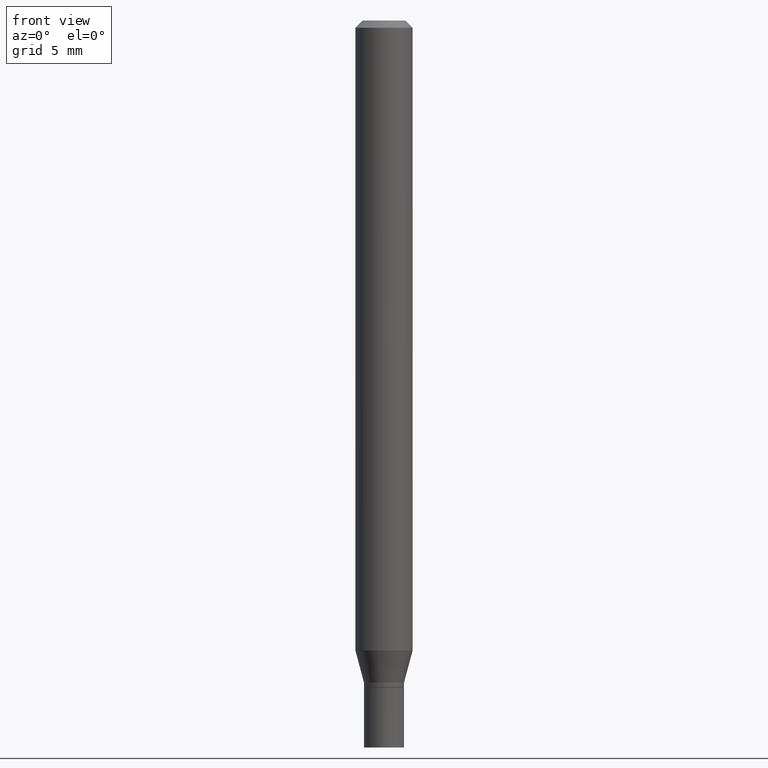
[diagram: clean part render]
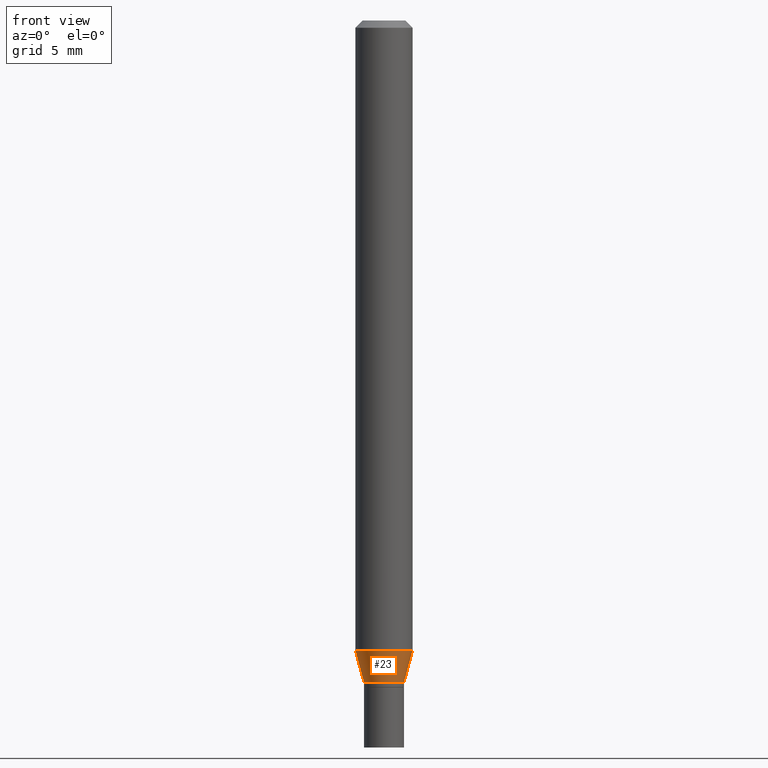
[diagram: same view with one face highlighted and labeled with its STEP entity id]
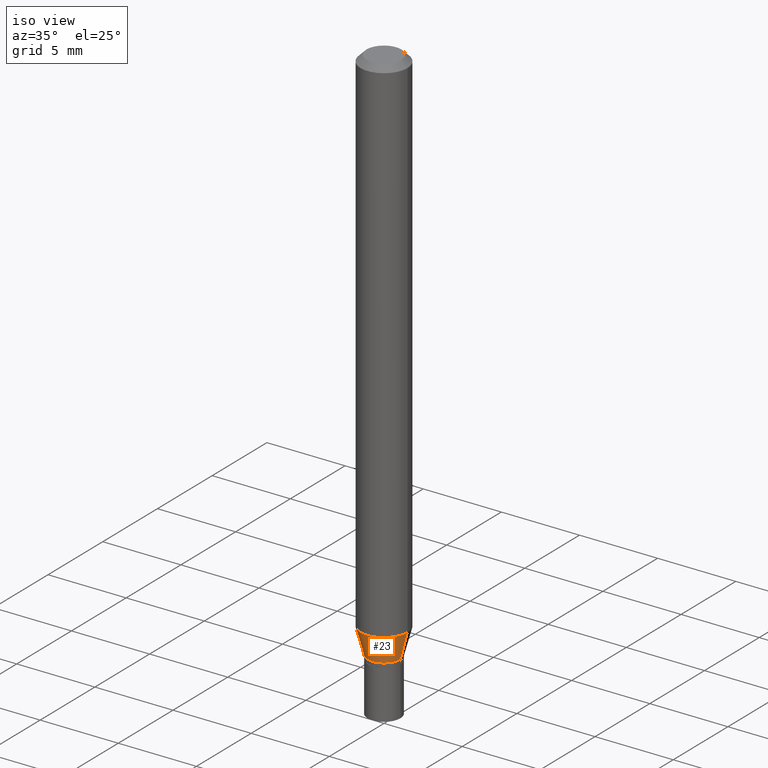
[diagram: same view with one face highlighted and labeled with its STEP entity id]
A machine part, front view. The second image highlights one B-rep face of the part: STEP entity #23.
A second angle (iso view) of the same face is appended — the face is thin or edge-on in the first view.
In plain terms, the highlighted conical surface has half-angle 15 deg.
Its self-contained STEP definition (entity closure, byte-faithful):
#10 = DIRECTION ( 'NONE',  ( -0.2588190451025217387, 5.211531920934551042E-15, 0.9659258262890679791 ) ) ;
#16 = LINE ( 'NONE', #411, #347 ) ;
#18 = DIRECTION ( 'NONE',  ( -2.445468806185136597E-29, 3.491481338843145583E-15, 1.000000000000000000 ) ) ;
#23 = ADVANCED_FACE ( 'NONE', ( #433 ), #461, .T. ) ;
#27 = AXIS2_PLACEMENT_3D ( 'NONE', #396, #108, #148 ) ;
#48 = AXIS2_PLACEMENT_3D ( 'NONE', #81, #18, #266 ) ;
#58 = EDGE_CURVE ( 'NONE', #437, #228, #16, .T. ) ;
#71 = DIRECTION ( 'NONE',  ( 1.000000000000000000, -6.982962677686262766E-15, 0.000000000000000000 ) ) ;
#81 = CARTESIAN_POINT ( 'NONE',  ( 3.178724777524041310E-29, -4.538376532946583262E-15, -1.299842700706030918 ) ) ;
#108 = DIRECTION ( 'NONE',  ( -2.445468806185136597E-29, 3.491481338843145583E-15, 1.000000000000000000 ) ) ;
#109 = VECTOR ( 'NONE', #10, 39.37007874015748854 ) ;
#111 = CARTESIAN_POINT ( 'NONE',  ( -0.04134999999999992154, -4.297002993484647567E-15, -1.365900000000000114 ) ) ;
#125 = LINE ( 'NONE', #184, #109 ) ;
#148 = DIRECTION ( 'NONE',  ( 1.000000000000000000, -6.982962677686262766E-15, 0.000000000000000000 ) ) ;
#174 = DIRECTION ( 'NONE',  ( -2.445468806185136597E-29, 3.491481338843145583E-15, 1.000000000000000000 ) ) ;
#178 = CARTESIAN_POINT ( 'NONE',  ( 0.05904999999999999832, -4.950720479063956605E-15, -1.299842700706030918 ) ) ;
#184 = CARTESIAN_POINT ( 'NONE',  ( -0.04134999999999992154, -4.475204939489051364E-15, -1.365900000000000114 ) ) ;
#190 = EDGE_LOOP ( 'NONE', ( #212, #231, #281, #324 ) ) ;
#204 = VERTEX_POINT ( 'NONE', #111 ) ;
#212 = ORIENTED_EDGE ( 'NONE', *, *, #443, .F. ) ;
#226 = CARTESIAN_POINT ( 'NONE',  ( 0.04134999999999992154, -5.057759867448178932E-15, -1.365900000000000114 ) ) ;
#228 = VERTEX_POINT ( 'NONE', #178 ) ;
#231 = ORIENTED_EDGE ( 'NONE', *, *, #275, .T. ) ;
#235 = DIRECTION ( 'NONE',  ( 0.2588190451025217387, 1.565188264969619207E-15, 0.9659258262890679791 ) ) ;
#254 = VERTEX_POINT ( 'NONE', #429 ) ;
#266 = DIRECTION ( 'NONE',  ( 1.000000000000000000, -6.982962677686273021E-15, 0.000000000000000000 ) ) ;
#275 = EDGE_CURVE ( 'NONE', #204, #437, #436, .T. ) ;
#281 = ORIENTED_EDGE ( 'NONE', *, *, #58, .T. ) ;
#302 = AXIS2_PLACEMENT_3D ( 'NONE', #400, #174, #71 ) ;
#307 = CIRCLE ( 'NONE', #48, 0.05904999999999999832 ) ;
#324 = ORIENTED_EDGE ( 'NONE', *, *, #435, .F. ) ;
#347 = VECTOR ( 'NONE', #235, 39.37007874015748854 ) ;
#396 = CARTESIAN_POINT ( 'NONE',  ( 3.340265842368278094E-29, -4.769014360725852776E-15, -1.365900000000000114 ) ) ;
#400 = CARTESIAN_POINT ( 'NONE',  ( 3.340265842368278094E-29, -4.769014360725852776E-15, -1.365900000000000114 ) ) ;
#411 = CARTESIAN_POINT ( 'NONE',  ( 0.04134999999999992154, -5.057759867448178932E-15, -1.365900000000000114 ) ) ;
#429 = CARTESIAN_POINT ( 'NONE',  ( -0.05904999999999999832, -4.118801047480243769E-15, -1.299842700706030918 ) ) ;
#433 = FACE_OUTER_BOUND ( 'NONE', #190, .T. ) ;
#435 = EDGE_CURVE ( 'NONE', #254, #228, #307, .T. ) ;
#436 = CIRCLE ( 'NONE', #302, 0.04134999999999992154 ) ;
#437 = VERTEX_POINT ( 'NONE', #226 ) ;
#443 = EDGE_CURVE ( 'NONE', #204, #254, #125, .T. ) ;
#461 = CONICAL_SURFACE ( 'NONE', #27, 0.04134999999999992154, 0.2617993877991504625 ) ;